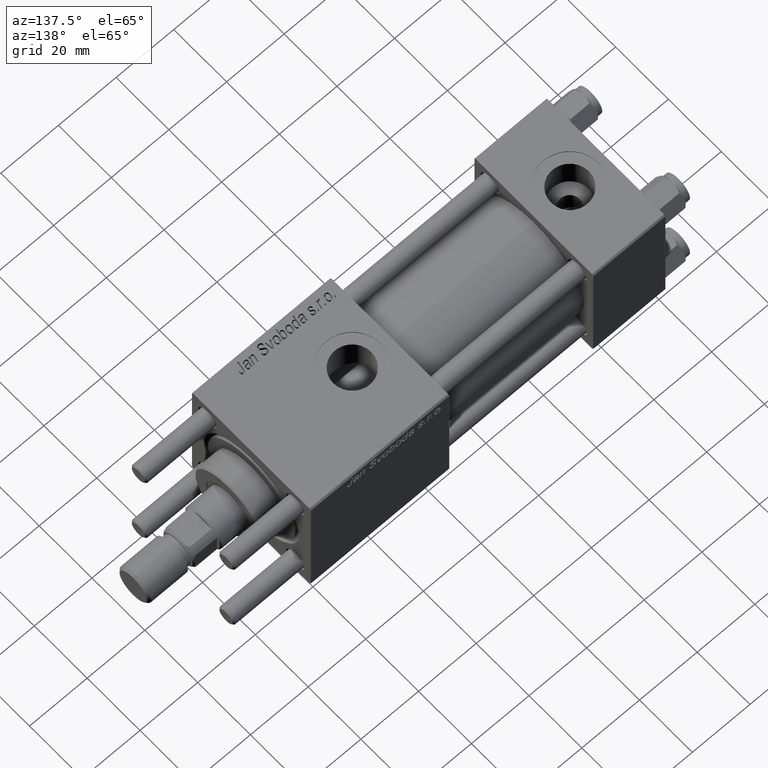
[diagram: clean part render]
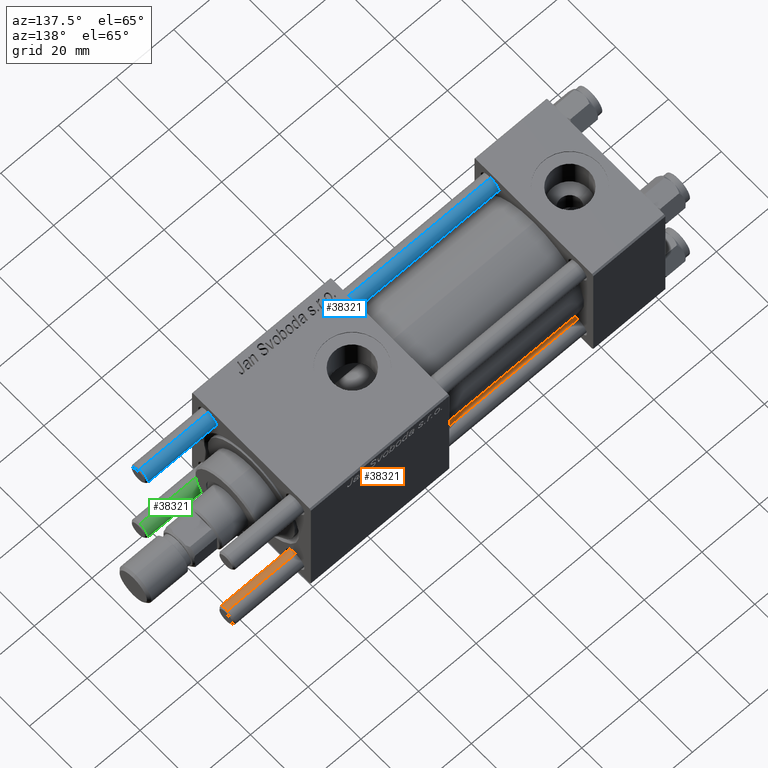
[diagram: same view with three faces highlighted in distinct colors, each labeled with its STEP entity id]
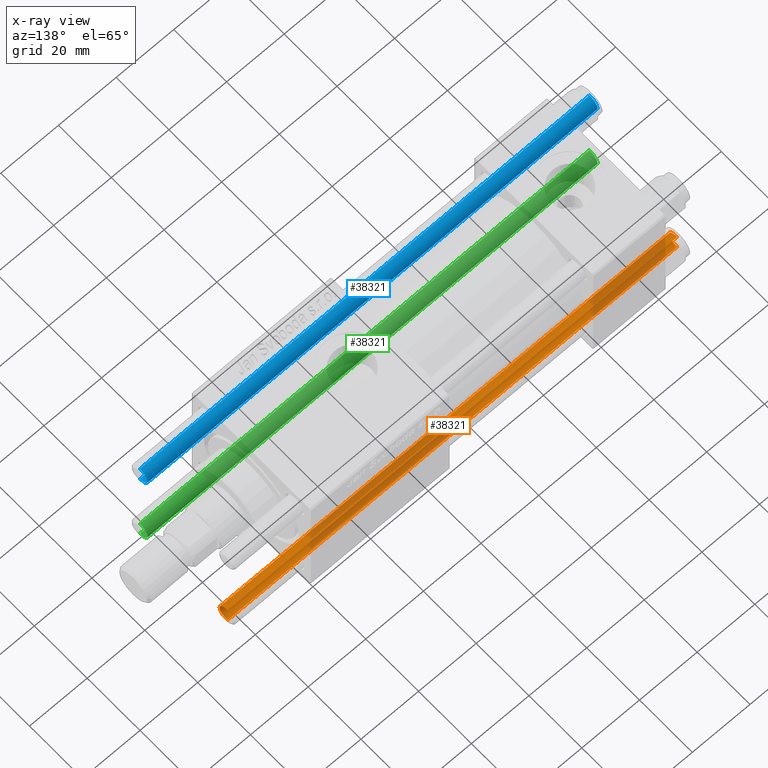
[diagram: x-ray of the same camera — body ghosted, the three highlighted faces saturated]
A machine part, auxiliary view with three faces highlighted in distinct colors.
The next image is the same camera in x-ray (body ghosted, the three faces saturated) — at least one of them is partly hidden behind the body in this view.
Their STEP definitions:

[orange] entity #38321 — the highlighted cylindrical surface (edge-blend (fillet) strip) has radius 3 mm, axis along (-1, -0, 0).
#1671 = VERTEX_POINT ( 'NONE', #57362 ) ;
#1690 = CARTESIAN_POINT ( 'NONE',  ( 0.000000000000000000, 0.000000000000000000, 0.4999999999999726885 ) ) ;
#1808 = ORIENTED_EDGE ( 'NONE', *, *, #24856, .T. ) ;
#2264 = DIRECTION ( 'NONE',  ( -0.000000000000000000, -0.000000000000000000, -1.000000000000000000 ) ) ;
#5695 = CARTESIAN_POINT ( 'NONE',  ( 3.000000000000000444, 3.673940397442060361E-16, 156.5000000000000284 ) ) ;
#6175 = DIRECTION ( 'NONE',  ( 1.000000000000000000, 0.000000000000000000, 0.000000000000000000 ) ) ;
#8299 = LINE ( 'NONE', #26496, #57607 ) ;
#8317 = VERTEX_POINT ( 'NONE', #33707 ) ;
#8693 = VERTEX_POINT ( 'NONE', #29738 ) ;
#10931 = DIRECTION ( 'NONE',  ( -1.000000000000000000, 0.000000000000000000, 0.000000000000000000 ) ) ;
#18984 = ORIENTED_EDGE ( 'NONE', *, *, #38199, .F. ) ;
#19587 = ORIENTED_EDGE ( 'NONE', *, *, #25484, .T. ) ;
#19724 = DIRECTION ( 'NONE',  ( 1.000000000000000000, 0.000000000000000000, 0.000000000000000000 ) ) ;
#22306 = LINE ( 'NONE', #31853, #27314 ) ;
#24856 = EDGE_CURVE ( 'NONE', #8693, #1671, #45218, .T. ) ;
#25484 = EDGE_CURVE ( 'NONE', #8317, #8693, #8299, .T. ) ;
#26496 = CARTESIAN_POINT ( 'NONE',  ( -3.000000000000000444, 0.000000000000000000, 157.0000000000000000 ) ) ;
#27314 = VECTOR ( 'NONE', #35722, 1000.000000000000000 ) ;
#29738 = CARTESIAN_POINT ( 'NONE',  ( -3.000000000000000444, 0.000000000000000000, 0.4999999999999726885 ) ) ;
#30283 = FACE_OUTER_BOUND ( 'NONE', #55431, .T. ) ;
#31063 = EDGE_CURVE ( 'NONE', #52603, #8317, #53195, .T. ) ;
#31853 = CARTESIAN_POINT ( 'NONE',  ( 3.000000000000000444, 3.673940397442060361E-16, 157.0000000000000000 ) ) ;
#33602 = CARTESIAN_POINT ( 'NONE',  ( 0.000000000000000000, 0.000000000000000000, 157.0000000000000000 ) ) ;
#33707 = CARTESIAN_POINT ( 'NONE',  ( -3.000000000000000444, 0.000000000000000000, 156.5000000000000284 ) ) ;
#34144 = AXIS2_PLACEMENT_3D ( 'NONE', #47431, #46856, #19724 ) ;
#35722 = DIRECTION ( 'NONE',  ( -0.000000000000000000, -0.000000000000000000, -1.000000000000000000 ) ) ;
#38199 = EDGE_CURVE ( 'NONE', #52603, #1671, #22306, .T. ) ;
#38321 = ADVANCED_FACE ( 'NONE', ( #30283 ), #52081, .T. ) ;
#43135 = DIRECTION ( 'NONE',  ( -0.000000000000000000, -0.000000000000000000, 1.000000000000000000 ) ) ;
#44672 = DIRECTION ( 'NONE',  ( -0.000000000000000000, -0.000000000000000000, -1.000000000000000000 ) ) ;
#45218 = CIRCLE ( 'NONE', #49023, 3.000000000000000444 ) ;
#46334 = ORIENTED_EDGE ( 'NONE', *, *, #31063, .T. ) ;
#46856 = DIRECTION ( 'NONE',  ( 0.000000000000000000, 0.000000000000000000, -1.000000000000000000 ) ) ;
#47431 = CARTESIAN_POINT ( 'NONE',  ( 0.000000000000000000, 0.000000000000000000, 156.5000000000000284 ) ) ;
#49023 = AXIS2_PLACEMENT_3D ( 'NONE', #1690, #43135, #6175 ) ;
#51154 = AXIS2_PLACEMENT_3D ( 'NONE', #33602, #2264, #10931 ) ;
#52081 = CYLINDRICAL_SURFACE ( 'NONE', #51154, 3.000000000000000444 ) ;
#52603 = VERTEX_POINT ( 'NONE', #5695 ) ;
#53195 = CIRCLE ( 'NONE', #34144, 3.000000000000000444 ) ;
#55431 = EDGE_LOOP ( 'NONE', ( #18984, #46334, #19587, #1808 ) ) ;
#57362 = CARTESIAN_POINT ( 'NONE',  ( 3.000000000000000444, 3.673940397442060361E-16, 0.4999999999999726885 ) ) ;
#57607 = VECTOR ( 'NONE', #44672, 1000.000000000000000 ) ;

[blue] entity #38321 — the highlighted cylindrical surface (edge-blend (fillet) strip) has radius 3 mm, axis along (-1, 0, -0).
#1671 = VERTEX_POINT ( 'NONE', #57362 ) ;
#1690 = CARTESIAN_POINT ( 'NONE',  ( 0.000000000000000000, 0.000000000000000000, 0.4999999999999726885 ) ) ;
#1808 = ORIENTED_EDGE ( 'NONE', *, *, #24856, .T. ) ;
#2264 = DIRECTION ( 'NONE',  ( -0.000000000000000000, -0.000000000000000000, -1.000000000000000000 ) ) ;
#5695 = CARTESIAN_POINT ( 'NONE',  ( 3.000000000000000444, 3.673940397442060361E-16, 156.5000000000000284 ) ) ;
#6175 = DIRECTION ( 'NONE',  ( 1.000000000000000000, 0.000000000000000000, 0.000000000000000000 ) ) ;
#8299 = LINE ( 'NONE', #26496, #57607 ) ;
#8317 = VERTEX_POINT ( 'NONE', #33707 ) ;
#8693 = VERTEX_POINT ( 'NONE', #29738 ) ;
#10931 = DIRECTION ( 'NONE',  ( -1.000000000000000000, 0.000000000000000000, 0.000000000000000000 ) ) ;
#18984 = ORIENTED_EDGE ( 'NONE', *, *, #38199, .F. ) ;
#19587 = ORIENTED_EDGE ( 'NONE', *, *, #25484, .T. ) ;
#19724 = DIRECTION ( 'NONE',  ( 1.000000000000000000, 0.000000000000000000, 0.000000000000000000 ) ) ;
#22306 = LINE ( 'NONE', #31853, #27314 ) ;
#24856 = EDGE_CURVE ( 'NONE', #8693, #1671, #45218, .T. ) ;
#25484 = EDGE_CURVE ( 'NONE', #8317, #8693, #8299, .T. ) ;
#26496 = CARTESIAN_POINT ( 'NONE',  ( -3.000000000000000444, 0.000000000000000000, 157.0000000000000000 ) ) ;
#27314 = VECTOR ( 'NONE', #35722, 1000.000000000000000 ) ;
#29738 = CARTESIAN_POINT ( 'NONE',  ( -3.000000000000000444, 0.000000000000000000, 0.4999999999999726885 ) ) ;
#30283 = FACE_OUTER_BOUND ( 'NONE', #55431, .T. ) ;
#31063 = EDGE_CURVE ( 'NONE', #52603, #8317, #53195, .T. ) ;
#31853 = CARTESIAN_POINT ( 'NONE',  ( 3.000000000000000444, 3.673940397442060361E-16, 157.0000000000000000 ) ) ;
#33602 = CARTESIAN_POINT ( 'NONE',  ( 0.000000000000000000, 0.000000000000000000, 157.0000000000000000 ) ) ;
#33707 = CARTESIAN_POINT ( 'NONE',  ( -3.000000000000000444, 0.000000000000000000, 156.5000000000000284 ) ) ;
#34144 = AXIS2_PLACEMENT_3D ( 'NONE', #47431, #46856, #19724 ) ;
#35722 = DIRECTION ( 'NONE',  ( -0.000000000000000000, -0.000000000000000000, -1.000000000000000000 ) ) ;
#38199 = EDGE_CURVE ( 'NONE', #52603, #1671, #22306, .T. ) ;
#38321 = ADVANCED_FACE ( 'NONE', ( #30283 ), #52081, .T. ) ;
#43135 = DIRECTION ( 'NONE',  ( -0.000000000000000000, -0.000000000000000000, 1.000000000000000000 ) ) ;
#44672 = DIRECTION ( 'NONE',  ( -0.000000000000000000, -0.000000000000000000, -1.000000000000000000 ) ) ;
#45218 = CIRCLE ( 'NONE', #49023, 3.000000000000000444 ) ;
#46334 = ORIENTED_EDGE ( 'NONE', *, *, #31063, .T. ) ;
#46856 = DIRECTION ( 'NONE',  ( 0.000000000000000000, 0.000000000000000000, -1.000000000000000000 ) ) ;
#47431 = CARTESIAN_POINT ( 'NONE',  ( 0.000000000000000000, 0.000000000000000000, 156.5000000000000284 ) ) ;
#49023 = AXIS2_PLACEMENT_3D ( 'NONE', #1690, #43135, #6175 ) ;
#51154 = AXIS2_PLACEMENT_3D ( 'NONE', #33602, #2264, #10931 ) ;
#52081 = CYLINDRICAL_SURFACE ( 'NONE', #51154, 3.000000000000000444 ) ;
#52603 = VERTEX_POINT ( 'NONE', #5695 ) ;
#53195 = CIRCLE ( 'NONE', #34144, 3.000000000000000444 ) ;
#55431 = EDGE_LOOP ( 'NONE', ( #18984, #46334, #19587, #1808 ) ) ;
#57362 = CARTESIAN_POINT ( 'NONE',  ( 3.000000000000000444, 3.673940397442060361E-16, 0.4999999999999726885 ) ) ;
#57607 = VECTOR ( 'NONE', #44672, 1000.000000000000000 ) ;

[green] entity #38321 — the highlighted cylindrical surface (edge-blend (fillet) strip) has radius 3 mm, axis along (1, 0, 0).
#1671 = VERTEX_POINT ( 'NONE', #57362 ) ;
#1690 = CARTESIAN_POINT ( 'NONE',  ( 0.000000000000000000, 0.000000000000000000, 0.4999999999999726885 ) ) ;
#1808 = ORIENTED_EDGE ( 'NONE', *, *, #24856, .T. ) ;
#2264 = DIRECTION ( 'NONE',  ( -0.000000000000000000, -0.000000000000000000, -1.000000000000000000 ) ) ;
#5695 = CARTESIAN_POINT ( 'NONE',  ( 3.000000000000000444, 3.673940397442060361E-16, 156.5000000000000284 ) ) ;
#6175 = DIRECTION ( 'NONE',  ( 1.000000000000000000, 0.000000000000000000, 0.000000000000000000 ) ) ;
#8299 = LINE ( 'NONE', #26496, #57607 ) ;
#8317 = VERTEX_POINT ( 'NONE', #33707 ) ;
#8693 = VERTEX_POINT ( 'NONE', #29738 ) ;
#10931 = DIRECTION ( 'NONE',  ( -1.000000000000000000, 0.000000000000000000, 0.000000000000000000 ) ) ;
#18984 = ORIENTED_EDGE ( 'NONE', *, *, #38199, .F. ) ;
#19587 = ORIENTED_EDGE ( 'NONE', *, *, #25484, .T. ) ;
#19724 = DIRECTION ( 'NONE',  ( 1.000000000000000000, 0.000000000000000000, 0.000000000000000000 ) ) ;
#22306 = LINE ( 'NONE', #31853, #27314 ) ;
#24856 = EDGE_CURVE ( 'NONE', #8693, #1671, #45218, .T. ) ;
#25484 = EDGE_CURVE ( 'NONE', #8317, #8693, #8299, .T. ) ;
#26496 = CARTESIAN_POINT ( 'NONE',  ( -3.000000000000000444, 0.000000000000000000, 157.0000000000000000 ) ) ;
#27314 = VECTOR ( 'NONE', #35722, 1000.000000000000000 ) ;
#29738 = CARTESIAN_POINT ( 'NONE',  ( -3.000000000000000444, 0.000000000000000000, 0.4999999999999726885 ) ) ;
#30283 = FACE_OUTER_BOUND ( 'NONE', #55431, .T. ) ;
#31063 = EDGE_CURVE ( 'NONE', #52603, #8317, #53195, .T. ) ;
#31853 = CARTESIAN_POINT ( 'NONE',  ( 3.000000000000000444, 3.673940397442060361E-16, 157.0000000000000000 ) ) ;
#33602 = CARTESIAN_POINT ( 'NONE',  ( 0.000000000000000000, 0.000000000000000000, 157.0000000000000000 ) ) ;
#33707 = CARTESIAN_POINT ( 'NONE',  ( -3.000000000000000444, 0.000000000000000000, 156.5000000000000284 ) ) ;
#34144 = AXIS2_PLACEMENT_3D ( 'NONE', #47431, #46856, #19724 ) ;
#35722 = DIRECTION ( 'NONE',  ( -0.000000000000000000, -0.000000000000000000, -1.000000000000000000 ) ) ;
#38199 = EDGE_CURVE ( 'NONE', #52603, #1671, #22306, .T. ) ;
#38321 = ADVANCED_FACE ( 'NONE', ( #30283 ), #52081, .T. ) ;
#43135 = DIRECTION ( 'NONE',  ( -0.000000000000000000, -0.000000000000000000, 1.000000000000000000 ) ) ;
#44672 = DIRECTION ( 'NONE',  ( -0.000000000000000000, -0.000000000000000000, -1.000000000000000000 ) ) ;
#45218 = CIRCLE ( 'NONE', #49023, 3.000000000000000444 ) ;
#46334 = ORIENTED_EDGE ( 'NONE', *, *, #31063, .T. ) ;
#46856 = DIRECTION ( 'NONE',  ( 0.000000000000000000, 0.000000000000000000, -1.000000000000000000 ) ) ;
#47431 = CARTESIAN_POINT ( 'NONE',  ( 0.000000000000000000, 0.000000000000000000, 156.5000000000000284 ) ) ;
#49023 = AXIS2_PLACEMENT_3D ( 'NONE', #1690, #43135, #6175 ) ;
#51154 = AXIS2_PLACEMENT_3D ( 'NONE', #33602, #2264, #10931 ) ;
#52081 = CYLINDRICAL_SURFACE ( 'NONE', #51154, 3.000000000000000444 ) ;
#52603 = VERTEX_POINT ( 'NONE', #5695 ) ;
#53195 = CIRCLE ( 'NONE', #34144, 3.000000000000000444 ) ;
#55431 = EDGE_LOOP ( 'NONE', ( #18984, #46334, #19587, #1808 ) ) ;
#57362 = CARTESIAN_POINT ( 'NONE',  ( 3.000000000000000444, 3.673940397442060361E-16, 0.4999999999999726885 ) ) ;
#57607 = VECTOR ( 'NONE', #44672, 1000.000000000000000 ) ;